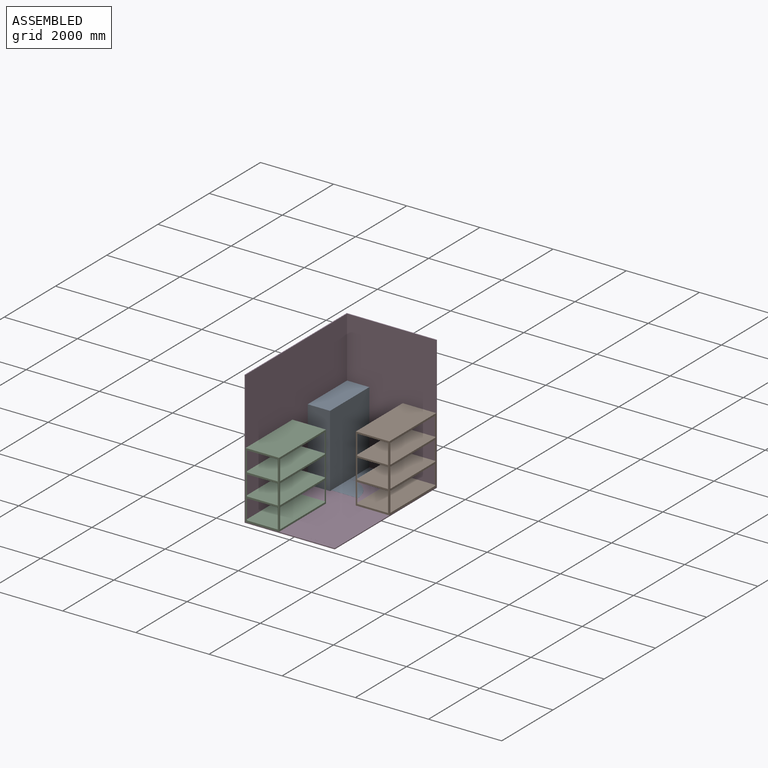
[diagram: assembled view]
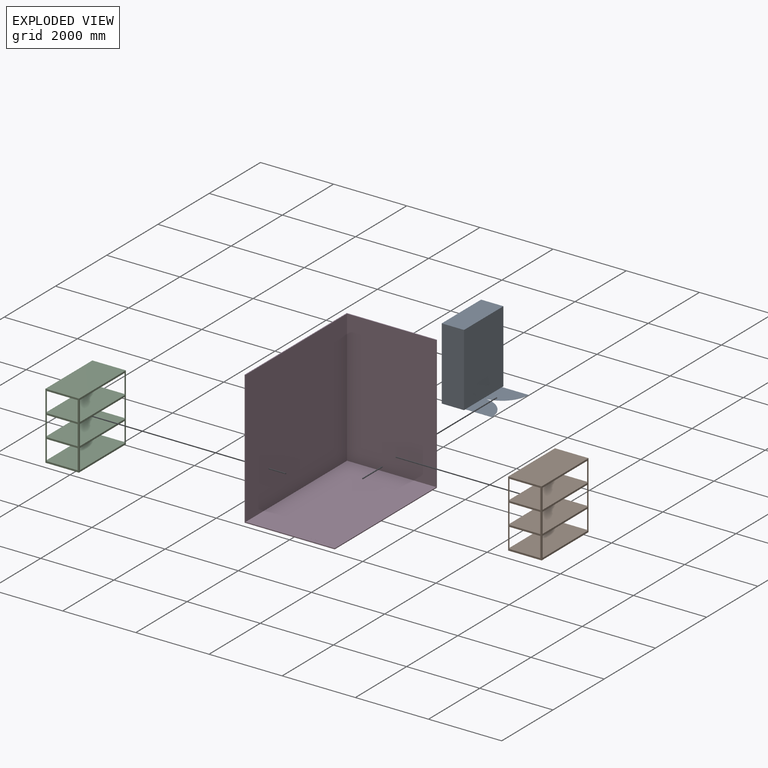
[diagram: exploded view]
GUIDED TOUR — MATED ASSEMBLY (Onshape document bfb191aa97988a26eb6df9d6, AutoMate assembly bfb191aa97988a26eb6df9d6_90cce63ab116ef8dd522ebf6_835a052b0fb559f78be9dbe0_default)

This assembly has 4 components, labeled P0..P3 below (a component is one placed occurrence of a part; the same part can appear more than once), held together by 3 mates. A mate is a constraint between two components; its type names the relative motion it leaves free:
  FASTENED — locks the two components together rigidly (no relative motion).
Axis/direction vectors are unit vectors and 'through' points are millimeter coordinates, both in the assembly's world frame.

MATES
  1. FASTENED "Fastened 2": P0 <-> P3, direction (0.000, 1.000, 0.000) through (-1206.50, 1968.50, 25.40) mm
  2. FASTENED "Fastened 4": P1 <-> P3, direction (1.000, 0.000, 0.000) through (1231.90, 1968.50, 25.40) mm
  3. FASTENED "Fastened 3": P2 <-> P3, direction (1.000, 0.000, 0.000) through (-1206.50, -1993.90, 25.40) mm

ASSEMBLY ORDER
  1. P3 — the base component [order heuristic]
  2. P1 — core [order heuristic]
  3. P2 — core [order heuristic]
  4. P0 [order verified]
Order-tag legend:
  [order verified] — this step's position reverses a verified removal order: the component was checked to insert without passing through the ones already placed.
  [order heuristic] — the first 3 components form the assembly's core: parts whose collision-free extraction could not be verified, listed in mate-graph order.

Of the 4 components, 3 carry the full construction recipe — the FeatureScript program that regenerates the part's solid from scratch; the rest are supplied as boundary geometry only.
Each toured component is shown spotlighted twice — in the assembled view, then in the exploded view, where a leader line traces a displaced component back to its assembled socket (saturated green if recipe-attached, orange if geometry-only; every other component desaturated gray) — followed by its recipe or geometry summary and the mates that hold it.
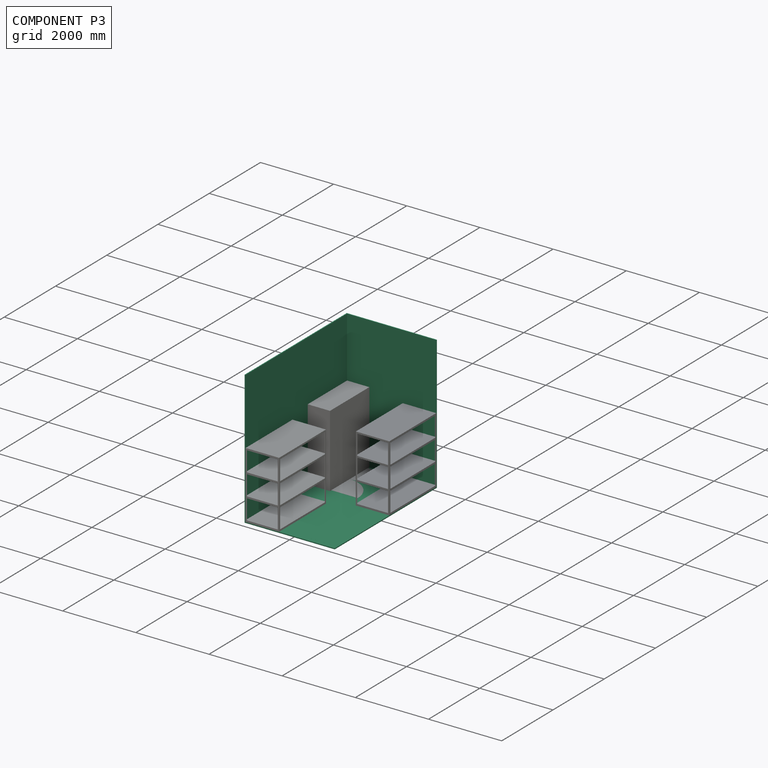
[diagram: component P3 — assembled]
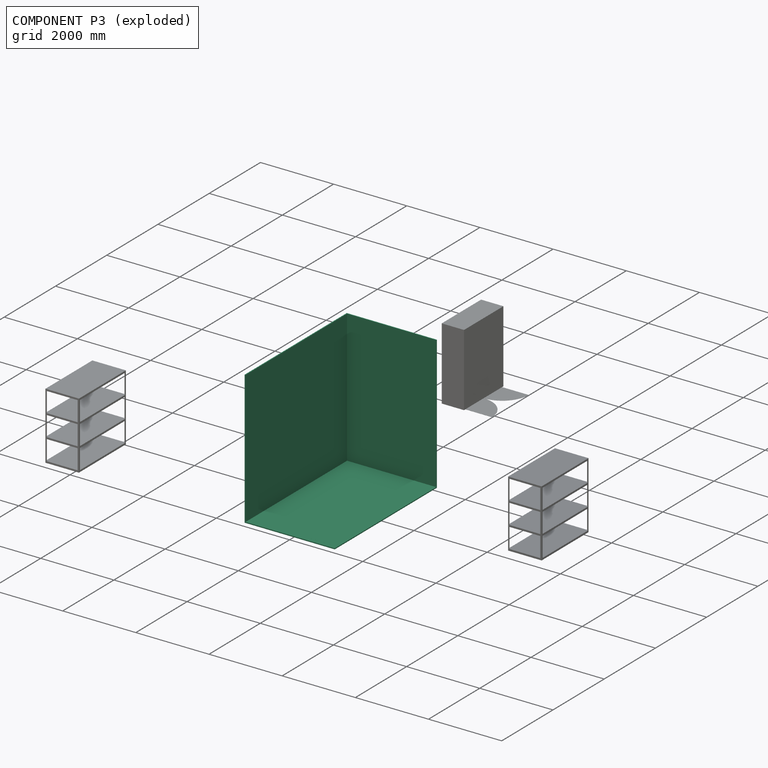
[diagram: component P3 — exploded]
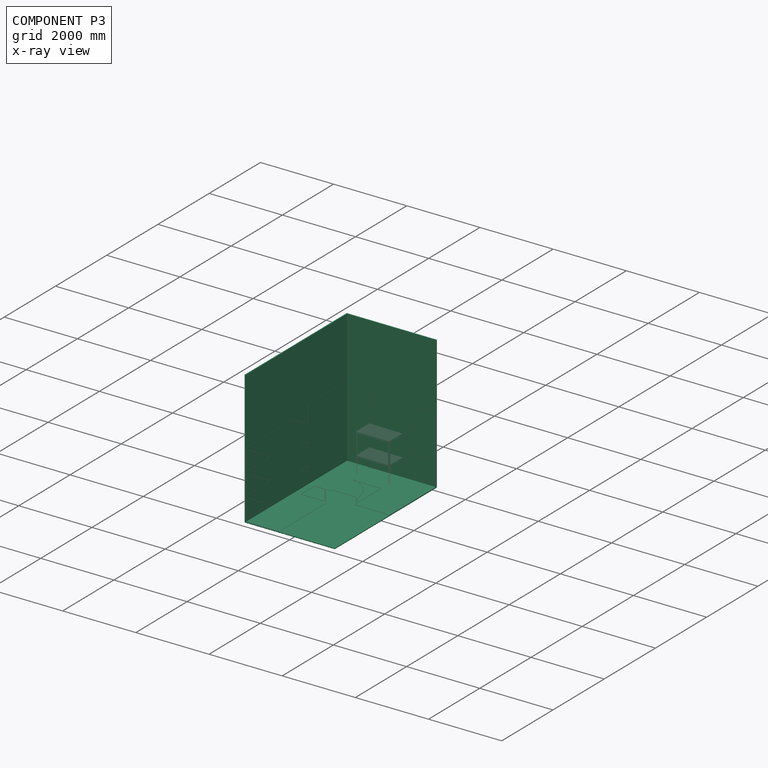
[diagram: component P3 — x-ray view]
COMPONENT P3 — recipe-attached (CADFS 00118780, mesh-verified: the recipe's output STEP matches this component's geometry to below the mesh-comparison resolution (tessellation chordal tolerance ~8.92 mm)).
Held by: FASTENED mate "Fastened 2" to P0; FASTENED mate "Fastened 4" to P1; FASTENED mate "Fastened 3" to P2.
Construction recipe (FeatureScript — the CAD program that rebuilds this solid; sketch coordinates are in the units given by the * unit suffixes, e.g. mm):

FeatureScript 1511;
import(path : "onshape/std/geometry.fs", version : "1511.0");
import(path : "onshape/std/common.fs", version : "1511.0");
const mm = millimeter;
const VERTEX = EntityType.VERTEX;
const EDGE = EntityType.EDGE;
const FACE = EntityType.FACE;
const BODY = EntityType.BODY;
function v(x, y){return vector(x, y);}
function OD(order){return orderDisambiguation(order);}
function OSD(set){return originalSetDisambiguation(set);}
function TD(topology){return topologyDisambiguation(topology);}
function TDD(query){return trueDependencyDisambiguation(query);}
function sQuery(a, b, c) {return sketchEntityQuery(a, b, c);}

annotation { "Feature Type Name" : "Feature", "Feature Type Description" : "" }
export const myFeature = defineFeature(function(context is Context, id is Id, definition is map)
    precondition{}
    {
        {
            var Q0;
            Q0=qCreatedBy(makeId("Top.planeOp"),FACE);
            var sketch = newSketch(context, id + "F0", { "sketchPlane" : qUnion([Q0])});
            skLineSegment(sketch, "E0.bottom", {"start": v(1231.9, -1993.9) * mm, "end": v(-1231.9, -1993.9) * mm});
            skLineSegment(sketch, "E0.top", {"start": v(1231.9, 1993.9) * mm, "end": v(-1231.9, 1993.9) * mm});
            skLineSegment(sketch, "E0.left", {"start": v(1231.9, -1993.9) * mm, "end": v(1231.9, 1993.9) * mm});
            skLineSegment(sketch, "E0.right", {"start": v(-1231.9, -1993.9) * mm, "end": v(-1231.9, 1993.9) * mm});
            skPoint(sketch, "E0.middle", {"position": v(0, 0) * mm});
            skSolve(sketch);
        }
        {
            var Q0;
            Q0 = qSketchRegion(id + "F0", true);
            extrude(context, id + "F1", {"entities" : qUnion([Q0]), "depth" : 3657.6 * mm});
        }
        {
            var Q0;
            Q0=makeQuery(id+"F1.opExtrude","CAP_FACE",FACE,{"disambiguationData":[OSD([sQuery(id+"F0.wireOp",EDGE,"E0.bottom"),sQuery(id+"F0.wireOp",EDGE,"E0.top"),sQuery(id+"F0.wireOp",EDGE,"E0.left"),sQuery(id+"F0.wireOp",EDGE,"E0.right")])],"isStart":false});
            var sketch = newSketch(context, id + "F2", { "sketchPlane" : qUnion([Q0])});
            skLineSegment(sketch, "E1", {"start": v(-1231.9, 1993.9) * mm, "end": v(-1231.9, 1968.5) * mm, "construction": true});
            skLineSegment(sketch, "E2", {"start": v(-1231.9, 1968.5) * mm, "end": v(-1206.5, 1968.5) * mm, "construction": true});
            skLineSegment(sketch, "E3.bottom", {"start": v(-1206.5, 1968.5) * mm, "end": v(2236.3, 1968.5) * mm});
            skLineSegment(sketch, "E3.top", {"start": v(-1206.5, -3038.22) * mm, "end": v(2236.3, -3038.22) * mm});
            skLineSegment(sketch, "E3.left", {"start": v(-1206.5, 1968.5) * mm, "end": v(-1206.5, -3038.22) * mm});
            skLineSegment(sketch, "E3.right", {"start": v(2236.3, 1968.5) * mm, "end": v(2236.3, -3038.22) * mm});
            skSolve(sketch);
        }
        {
            var Q0;
            Q0 = qSketchRegion(id + "F2", true);
            extrude(context, id + "F3", {"entities" : qUnion([Q0]), "operationType" : NewBodyOperationType.REMOVE, "oppositeDirection" : true, "depth" : 3632.2 * mm});
        }
        {
            var Q0;
            Q0=makeQuery(id+"F3.boolean.opBoolean","COPY",FACE,{"derivedFrom":makeQuery(id+"F3.opExtrude","CAP_FACE",FACE,{"disambiguationData":[OSD([sQuery(id+"F2.wireOp",EDGE,"E3.bottom"),sQuery(id+"F2.wireOp",EDGE,"E3.top"),sQuery(id+"F2.wireOp",EDGE,"E3.left"),sQuery(id+"F2.wireOp",EDGE,"E3.right")])],"isStart":false})});
            var sketch = newSketch(context, id + "F4", { "sketchPlane" : qUnion([Q0])});
            skLineSegment(sketch, "E4", {"start": v(1231.9, 1968.5) * mm, "end": v(1231.9, -1003.3) * mm, "construction": true});
            skLineSegment(sketch, "E5", {"start": v(1231.9, -1993.9) * mm, "end": v(1231.9, -1879.6) * mm, "construction": true});
            skLineSegment(sketch, "E6", {"start": v(1231.9, -1003.3) * mm, "end": v(1231.9, -1879.6) * mm, "construction": true});
            skLineSegment(sketch, "E7", {"start": v(1231.9, -1879.6) * mm, "end": v(355.6, -1879.6) * mm, "construction": true});
            skLineSegment(sketch, "E8", {"start": v(355.6, -1879.6) * mm, "end": v(1231.9, -1879.6) * mm});
            skLineSegment(sketch, "E9", {"start": v(1231.9, -1879.6) * mm, "end": v(1231.9, -1003.3) * mm});
            skLineSegment(sketch, "E10", {"start": v(1231.9, -1879.6) * mm, "end": v(612.26, -1259.96) * mm, "construction": true});
            skArc(sketch, "E11", {"start": v(1231.9, -1003.3) * mm, "mid": v(612.26, -1259.96) * mm, "end": v(355.6, -1879.6) * mm});
            skSolve(sketch);
        }
        {
            var Q0;
            Q0 = qSketchRegion(id + "F4", true);
            extrude(context, id + "F5", {"entities" : qUnion([Q0]), "operationType" : NewBodyOperationType.ADD, "depth" : 0.5 * mm});
        }
    });
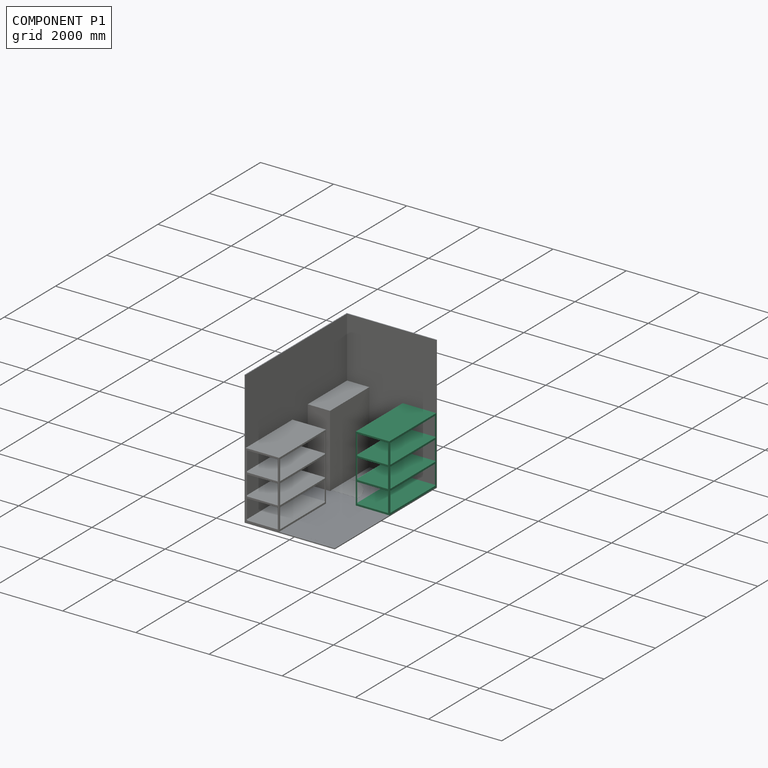
[diagram: component P1 — assembled]
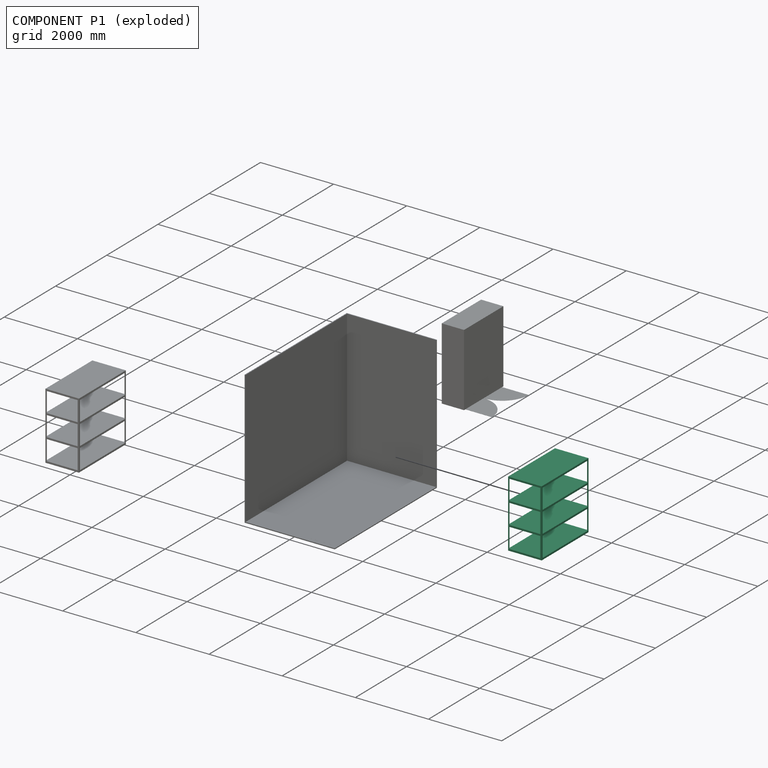
[diagram: component P1 — exploded]
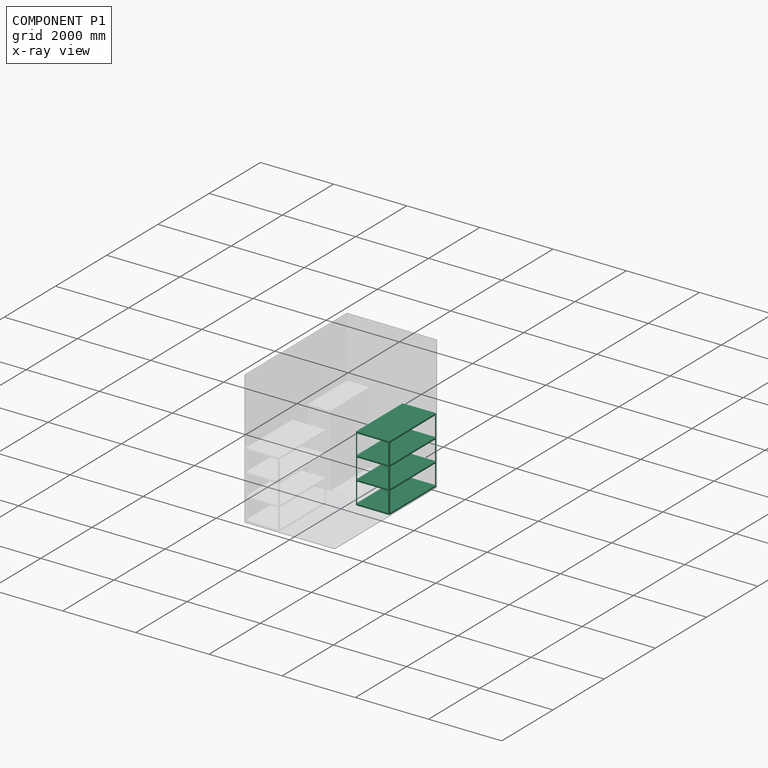
[diagram: component P1 — x-ray view]
COMPONENT P1 — recipe-attached (CADFS 00118782, mesh-verified: the recipe's output STEP matches this component's geometry to below the mesh-comparison resolution (tessellation chordal tolerance ~4.12 mm)).
Held by: FASTENED mate "Fastened 4" to P3.
Construction recipe (FeatureScript — the CAD program that rebuilds this solid; sketch coordinates are in the units given by the * unit suffixes, e.g. mm):

FeatureScript 1511;
import(path : "onshape/std/geometry.fs", version : "1511.0");
import(path : "onshape/std/common.fs", version : "1511.0");
const mm = millimeter;
const VERTEX = EntityType.VERTEX;
const EDGE = EntityType.EDGE;
const FACE = EntityType.FACE;
const BODY = EntityType.BODY;
function v(x, y){return vector(x, y);}
function OD(order){return orderDisambiguation(order);}
function OSD(set){return originalSetDisambiguation(set);}
function TD(topology){return topologyDisambiguation(topology);}
function TDD(query){return trueDependencyDisambiguation(query);}
function sQuery(a, b, c) {return sketchEntityQuery(a, b, c);}

annotation { "Feature Type Name" : "Feature", "Feature Type Description" : "" }
export const myFeature = defineFeature(function(context is Context, id is Id, definition is map)
    precondition{}
    {
        {
            var Q0;
            Q0=qCreatedBy(makeId("Top.planeOp"),FACE);
            var sketch = newSketch(context, id + "F0", { "sketchPlane" : qUnion([Q0])});
            skLineSegment(sketch, "E0.bottom", {"start": v(-457.2, 914.4) * mm, "end": v(457.2, 914.4) * mm});
            skLineSegment(sketch, "E0.top", {"start": v(-457.2, -914.4) * mm, "end": v(457.2, -914.4) * mm});
            skLineSegment(sketch, "E0.left", {"start": v(-457.2, 914.4) * mm, "end": v(-457.2, -914.4) * mm});
            skLineSegment(sketch, "E0.right", {"start": v(457.2, 914.4) * mm, "end": v(457.2, -914.4) * mm});
            skPoint(sketch, "E0.middle", {"position": v(0, 0) * mm});
            skSolve(sketch);
        }
        {
            var Q0;
            Q0 = qSketchRegion(id + "F0", true);
            extrude(context, id + "F1", {"entities" : qUnion([Q0]), "depth" : 47.62 * mm});
        }
        {
            var Q0;
            Q0=makeQuery(id+"F1.opExtrude","CAP_FACE",FACE,{"disambiguationData":[OSD([sQuery(id+"F0.wireOp",EDGE,"E0.bottom"),sQuery(id+"F0.wireOp",EDGE,"E0.top"),sQuery(id+"F0.wireOp",EDGE,"E0.left"),sQuery(id+"F0.wireOp",EDGE,"E0.right")])],"isStart":false});
            var sketch = newSketch(context, id + "F2", { "sketchPlane" : qUnion([Q0])});
            skLineSegment(sketch, "E1.bottom", {"start": v(-458.47, 915.67) * mm, "end": v(458.47, 915.67) * mm, "construction": true});
            skLineSegment(sketch, "E1.left", {"start": v(-458.47, 915.67) * mm, "end": v(-458.47, -915.67) * mm, "construction": true});
            skLineSegment(sketch, "E1.right", {"start": v(458.47, 915.67) * mm, "end": v(458.47, -915.67) * mm, "construction": true});
            skPoint(sketch, "E1.middle", {"position": v(0, 0) * mm});
            skLineSegment(sketch, "E2.left", {"start": v(-458.47, 915.67) * mm, "end": v(-458.47, 877.57) * mm, "construction": true});
            skLineSegment(sketch, "E3.top", {"start": v(420.37, -915.67) * mm, "end": v(458.47, -915.67) * mm, "construction": true});
            skLineSegment(sketch, "E3.left", {"start": v(420.37, 915.67) * mm, "end": v(420.37, -915.67) * mm, "construction": true});
            skLineSegment(sketch, "E4.bottom", {"start": v(458.47, -877.57) * mm, "end": v(-458.47, -877.57) * mm, "construction": true});
            skLineSegment(sketch, "E4.left", {"start": v(458.47, -877.57) * mm, "end": v(458.47, -920.76) * mm, "construction": true});
            skLineSegment(sketch, "E4.right", {"start": v(-458.47, -877.57) * mm, "end": v(-458.47, -915.67) * mm, "construction": true});
            skLineSegment(sketch, "E5", {"start": v(-458.47, -915.67) * mm, "end": v(420.37, -915.67) * mm, "construction": true});
            skLineSegment(sketch, "E6.bottom", {"start": v(458.47, 915.67) * mm, "end": v(-458.47, 915.67) * mm, "construction": true});
            skLineSegment(sketch, "E6.top", {"start": v(458.47, 877.57) * mm, "end": v(-458.47, 877.57) * mm, "construction": true});
            skLineSegment(sketch, "E6.left", {"start": v(458.47, 915.67) * mm, "end": v(458.47, 877.57) * mm, "construction": true});
            skLineSegment(sketch, "E7.bottom", {"start": v(-420.37, 915.67) * mm, "end": v(-458.47, 915.67) * mm, "construction": true});
            skLineSegment(sketch, "E7.top", {"start": v(-420.37, -915.67) * mm, "end": v(-458.47, -915.67) * mm, "construction": true});
            skLineSegment(sketch, "E7.left", {"start": v(-420.37, 915.67) * mm, "end": v(-420.37, -915.67) * mm, "construction": true});
            skLineSegment(sketch, "E8", {"start": v(458.47, -877.57) * mm, "end": v(457.2, -877.57) * mm});
            skLineSegment(sketch, "E9", {"start": v(457.2, -877.57) * mm, "end": v(457.2, -914.4) * mm});
            skLineSegment(sketch, "E10", {"start": v(457.2, -914.4) * mm, "end": v(420.37, -914.4) * mm});
            skLineSegment(sketch, "E11", {"start": v(420.37, -914.4) * mm, "end": v(420.37, -915.67) * mm});
            skLineSegment(sketch, "E12", {"start": v(458.47, -915.67) * mm, "end": v(420.37, -915.67) * mm});
            skLineSegment(sketch, "E13", {"start": v(458.47, -915.67) * mm, "end": v(458.47, -877.57) * mm});
            skLineSegment(sketch, "E14", {"start": v(-420.37, -915.67) * mm, "end": v(-420.37, -914.4) * mm});
            skLineSegment(sketch, "E15", {"start": v(-420.37, -914.4) * mm, "end": v(-457.2, -914.4) * mm});
            skLineSegment(sketch, "E16", {"start": v(-457.2, -914.4) * mm, "end": v(-457.2, -877.57) * mm});
            skLineSegment(sketch, "E17", {"start": v(-457.2, -877.57) * mm, "end": v(-458.47, -877.57) * mm});
            skLineSegment(sketch, "E18", {"start": v(-458.47, -877.57) * mm, "end": v(-458.47, -915.67) * mm});
            skLineSegment(sketch, "E19", {"start": v(-458.47, -915.67) * mm, "end": v(-420.37, -915.67) * mm});
            skLineSegment(sketch, "E20", {"start": v(-458.47, 877.57) * mm, "end": v(-457.2, 877.57) * mm});
            skLineSegment(sketch, "E21", {"start": v(-457.2, 877.57) * mm, "end": v(-457.2, 914.4) * mm});
            skLineSegment(sketch, "E22", {"start": v(-457.2, 914.4) * mm, "end": v(-420.37, 914.4) * mm});
            skLineSegment(sketch, "E23", {"start": v(-420.37, 914.4) * mm, "end": v(-420.37, 915.67) * mm});
            skLineSegment(sketch, "E24", {"start": v(-420.37, 915.67) * mm, "end": v(-458.47, 915.67) * mm});
            skLineSegment(sketch, "E25", {"start": v(-458.47, 915.67) * mm, "end": v(-458.47, 877.57) * mm});
            skLineSegment(sketch, "E26", {"start": v(420.37, 915.67) * mm, "end": v(458.47, 915.67) * mm});
            skLineSegment(sketch, "E27", {"start": v(458.47, 915.67) * mm, "end": v(458.47, 877.57) * mm});
            skLineSegment(sketch, "E28", {"start": v(458.47, 877.57) * mm, "end": v(457.2, 877.57) * mm});
            skLineSegment(sketch, "E29", {"start": v(457.2, 877.57) * mm, "end": v(457.2, 914.4) * mm});
            skLineSegment(sketch, "E30", {"start": v(457.2, 914.4) * mm, "end": v(420.37, 914.4) * mm});
            skLineSegment(sketch, "E31", {"start": v(420.37, 914.4) * mm, "end": v(420.37, 915.67) * mm});
            skSolve(sketch);
        }
        {
            var Q0;
            Q0 = qSketchRegion(id + "F2", true);
            extrude(context, id + "F3", {"entities" : qUnion([Q0]), "operationType" : NewBodyOperationType.ADD, "depth" : 1781.17 * mm, "hasSecondDirection" : true, "secondDirectionOppositeDirection" : true, "secondDirectionDepth" : 47.62 * mm});
        }
        {
            var Q0;
            Q0=makeQuery(id+"F1.opExtrude","CAP_FACE",FACE,{"disambiguationData":[OSD([sQuery(id+"F0.wireOp",EDGE,"E0.bottom"),sQuery(id+"F0.wireOp",EDGE,"E0.top"),sQuery(id+"F0.wireOp",EDGE,"E0.left"),sQuery(id+"F0.wireOp",EDGE,"E0.right")])],"isStart":false});
            cPlane(context, id + "F4", {"entities" : qUnion([Q0]), "cplaneType" : CPlaneType.OFFSET, "offset" : 546.1 * mm, "width" : 152.4 * mm, "height" : 152.4 * mm});
        }
        {
            var Q0;
            Q0=qCreatedBy(id+"F4.planeOp",FACE);
            var sketch = newSketch(context, id + "F5", { "sketchPlane" : qUnion([Q0])});
            skLineSegment(sketch, "E32.bottom", {"start": v(-457.2, 914.4) * mm, "end": v(457.2, 914.4) * mm});
            skLineSegment(sketch, "E32.top", {"start": v(-457.2, -914.4) * mm, "end": v(457.2, -914.4) * mm});
            skLineSegment(sketch, "E32.left", {"start": v(-457.2, 914.4) * mm, "end": v(-457.2, -914.4) * mm});
            skLineSegment(sketch, "E32.right", {"start": v(457.2, 914.4) * mm, "end": v(457.2, -914.4) * mm});
            skPoint(sketch, "E32.middle", {"position": v(0, 0) * mm});
            skSolve(sketch);
        }
        {
            var Q0;
            Q0 = qSketchRegion(id + "F5", true);
            extrude(context, id + "F6", {"entities" : qUnion([Q0]), "operationType" : NewBodyOperationType.ADD, "depth" : 47.62 * mm});
        }
        {
            var Q0;
            Q0=makeQuery(id+"F6.opExtrude","CAP_FACE",FACE,{"disambiguationData":[OSD([sQuery(id+"F5.wireOp",EDGE,"E32.bottom"),sQuery(id+"F5.wireOp",EDGE,"E32.top"),sQuery(id+"F5.wireOp",EDGE,"E32.left"),sQuery(id+"F5.wireOp",EDGE,"E32.right")])],"isStart":false});
            cPlane(context, id + "F7", {"entities" : qUnion([Q0]), "cplaneType" : CPlaneType.OFFSET, "offset" : 546.1 * mm, "width" : 152.4 * mm, "height" : 152.4 * mm});
        }
        {
            var Q0;
            Q0=qCreatedBy(id+"F7.planeOp",FACE);
            var sketch = newSketch(context, id + "F8", { "sketchPlane" : qUnion([Q0])});
            skLineSegment(sketch, "E33.bottom", {"start": v(-457.2, 914.4) * mm, "end": v(457.2, 914.4) * mm});
            skLineSegment(sketch, "E33.top", {"start": v(-457.2, -914.4) * mm, "end": v(457.2, -914.4) * mm});
            skLineSegment(sketch, "E33.left", {"start": v(-457.2, 914.4) * mm, "end": v(-457.2, -914.4) * mm});
            skLineSegment(sketch, "E33.right", {"start": v(457.2, 914.4) * mm, "end": v(457.2, -914.4) * mm});
            skPoint(sketch, "E33.middle", {"position": v(0, 0) * mm});
            skSolve(sketch);
        }
        {
            var Q0;
            Q0 = qSketchRegion(id + "F8", true);
            extrude(context, id + "F9", {"entities" : qUnion([Q0]), "operationType" : NewBodyOperationType.ADD, "depth" : 47.62 * mm});
        }
        {
            var Q0;
            Q0=makeQuery(id+"F9.opExtrude","CAP_FACE",FACE,{"disambiguationData":[OSD([sQuery(id+"F8.wireOp",EDGE,"E33.bottom"),sQuery(id+"F8.wireOp",EDGE,"E33.top"),sQuery(id+"F8.wireOp",EDGE,"E33.left"),sQuery(id+"F8.wireOp",EDGE,"E33.right")])],"isStart":false});
            cPlane(context, id + "F10", {"entities" : qUnion([Q0]), "cplaneType" : CPlaneType.OFFSET, "offset" : 546.1 * mm, "width" : 152.4 * mm, "height" : 152.4 * mm});
        }
        {
            var Q0;
            Q0=qCreatedBy(id+"F10.planeOp",FACE);
            var sketch = newSketch(context, id + "F11", { "sketchPlane" : qUnion([Q0])});
            skLineSegment(sketch, "E34.bottom", {"start": v(-457.2, 914.4) * mm, "end": v(457.2, 914.4) * mm});
            skLineSegment(sketch, "E34.top", {"start": v(-457.2, -914.4) * mm, "end": v(457.2, -914.4) * mm});
            skLineSegment(sketch, "E34.left", {"start": v(-457.2, 914.4) * mm, "end": v(-457.2, -914.4) * mm});
            skLineSegment(sketch, "E34.right", {"start": v(457.2, 914.4) * mm, "end": v(457.2, -914.4) * mm});
            skPoint(sketch, "E34.middle", {"position": v(0, 0) * mm});
            skSolve(sketch);
        }
        {
            var Q0;
            Q0 = qSketchRegion(id + "F11", true);
            extrude(context, id + "F12", {"entities" : qUnion([Q0]), "operationType" : NewBodyOperationType.ADD, "depth" : 47.7 * mm});
        }
    });
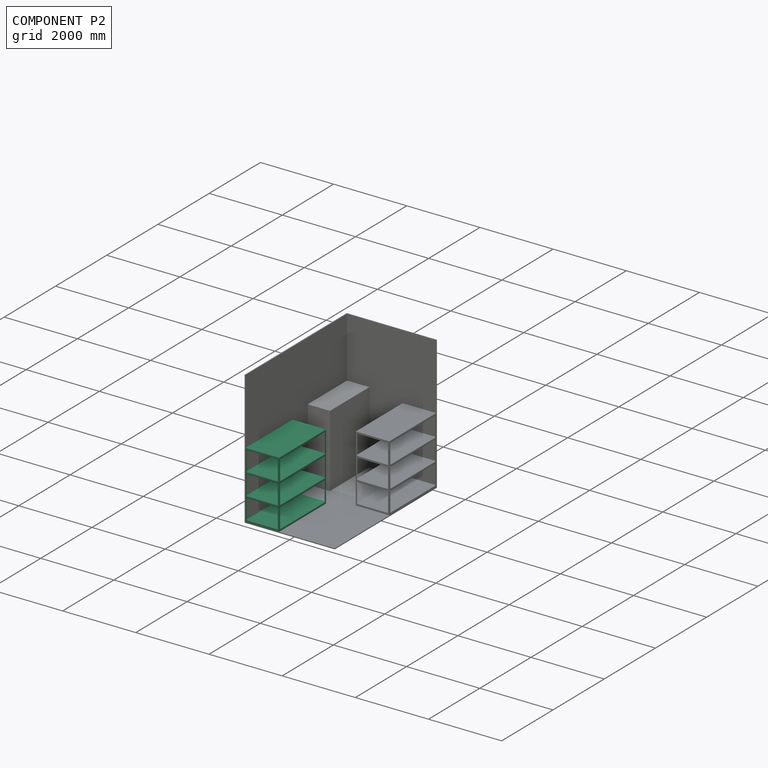
[diagram: component P2 — assembled]
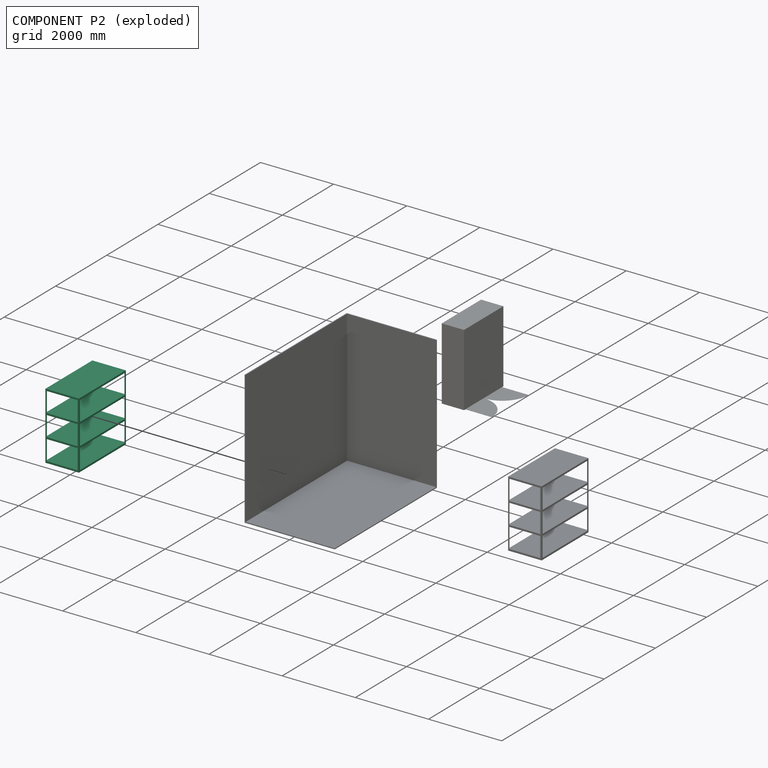
[diagram: component P2 — exploded]
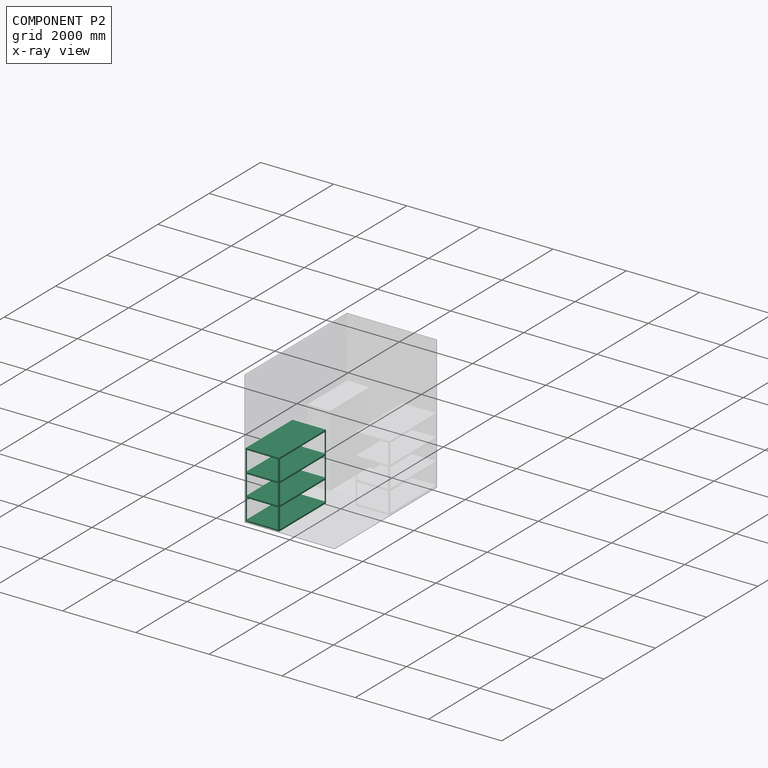
[diagram: component P2 — x-ray view]
COMPONENT P2 — same part as P1 (CADFS 00118782); its construction recipe is shown at P1.
Held by: FASTENED mate "Fastened 3" to P3.
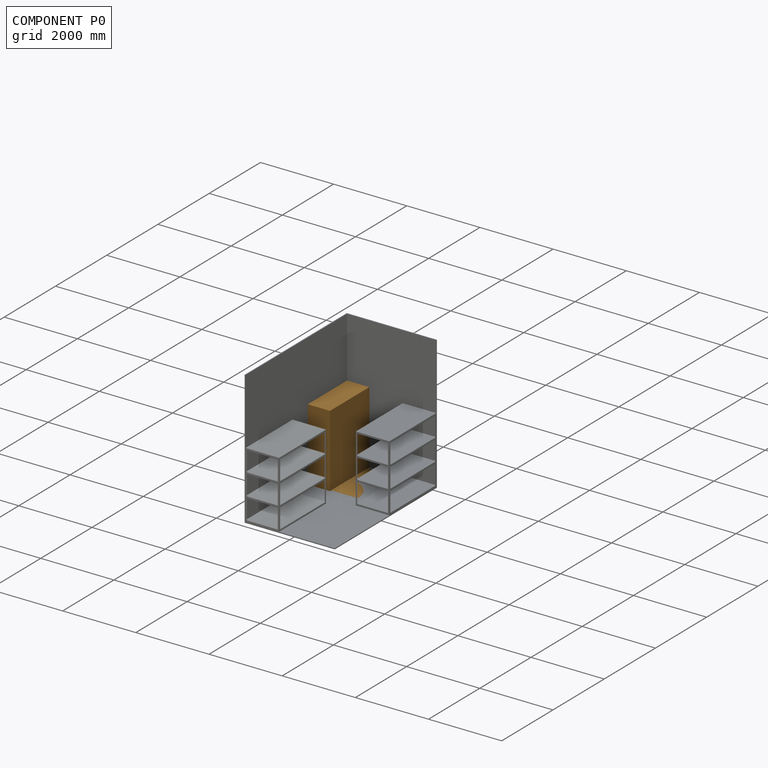
[diagram: component P0 — assembled]
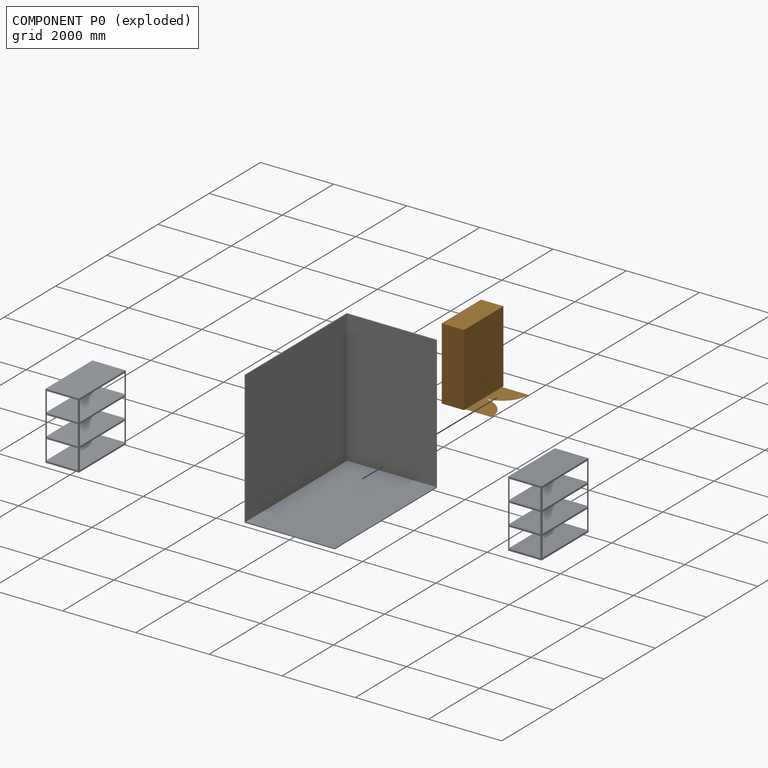
[diagram: component P0 — exploded]
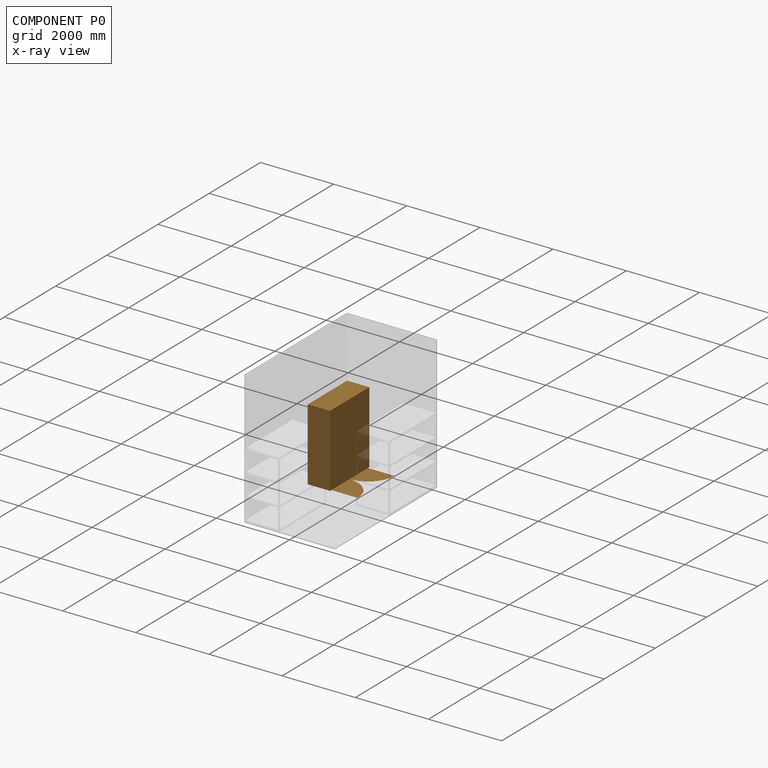
[diagram: component P0 — x-ray view]
COMPONENT P0 — geometry summary (no construction recipe available for this part):
  bounding box: 1981.2 x 1536.7 x 1333.5 mm
  B-rep topology: 1 solid, 12 faces, 56 edges
  volume: 1858000862 mm^3 (46% of its bounding box)
  symmetry: mirror-symmetric across its x mid-plane
Held by: FASTENED mate "Fastened 2" to P3.
PROVENANCE & LICENSES
Assembly (occurrences, transforms, mates, per-part STEP geometry): AutoMate dataset, Zenodo record 7776208, CC0.
Construction recipes: CADFS (HuggingFace VladPyatov/CADFS, CC-BY-4.0, layered over the ABC dataset), FeatureScript reconstruction programs keyed by ABC model id.
Join: ABC meta listings map ABC model id -> Onshape documentId; within a shared document, parts are matched by geometric signature (bounding-box dims + volume at 0.1% relative tolerance, exact B-rep face/solid counts).
Verification: 3 of this assembly's 4 components carry a recipe attachment, and every attachment is mesh-verified: the CADFS STEP and the AutoMate member STEP were compared as meshes in their shared local frame (symmetric sampled-point-to-mesh distance); worst across the 3 attachments: below the mesh-comparison resolution (tessellation chordal tolerance ~8.92 mm) on a 5946 mm part.
Renders: orthographic iso camera (az 35 / el 25); the floor grid conveys scale (grid pitch printed in each image; no ruler). In the exploded view each component is displaced by its stored offset vector: the offsets alone carry the explosion direction (mate normal/axis signs are not orientation cues and do not encode it), and separation distances are assigned per mate-chain, not proportionally to assembly-order depth.
